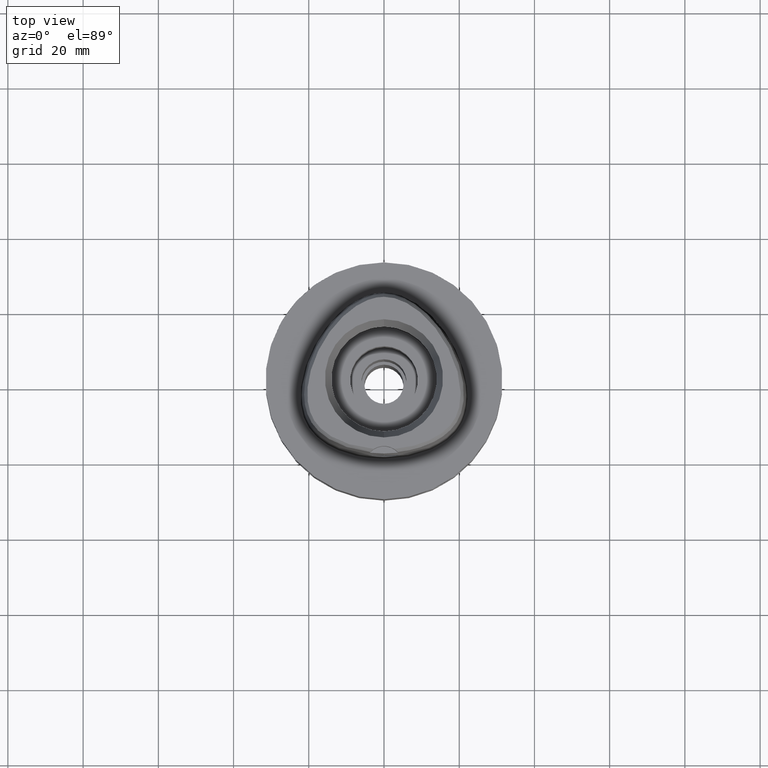
[diagram: clean part render]
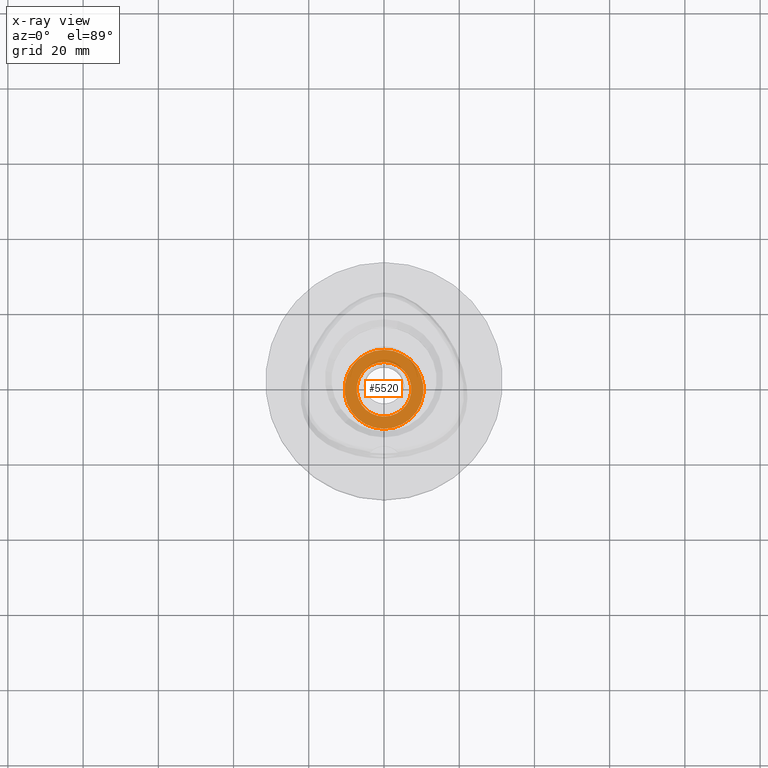
[diagram: x-ray — body ghosted, one internal face saturated and labeled with its STEP entity id]
A machine part, top view, then the same camera in x-ray: the body is ghosted and one INTERNAL B-rep face — a face not visible from any outside direction — is saturated and labeled: STEP entity #5520.
In plain terms, the highlighted planar face has unit normal (0, 0, -1).
Its self-contained STEP definition (entity closure, byte-faithful):
#272 = EDGE_CURVE ( 'NONE', #3691, #3678, #353, .T. ) ;
#353 = CIRCLE ( 'NONE', #622, 10.50000000000000000 ) ;
#579 = DIRECTION ( 'NONE',  ( 0.0000000000000000000, 0.0000000000000000000, 1.000000000000000000 ) ) ;
#622 = AXIS2_PLACEMENT_3D ( 'NONE', #1609, #1549, #3329 ) ;
#1212 = CARTESIAN_POINT ( 'NONE',  ( 0.0000000000000000000, 7.250000000000000000, -8.200000000000001066 ) ) ;
#1276 = VERTEX_POINT ( 'NONE', #3063 ) ;
#1397 = CIRCLE ( 'NONE', #3847, 7.250000000000000000 ) ;
#1549 = DIRECTION ( 'NONE',  ( 0.0000000000000000000, 0.0000000000000000000, -1.000000000000000000 ) ) ;
#1609 = CARTESIAN_POINT ( 'NONE',  ( 0.0000000000000000000, 0.0000000000000000000, -8.200000000000001066 ) ) ;
#1744 = FACE_BOUND ( 'NONE', #2426, .T. ) ;
#1852 = CARTESIAN_POINT ( 'NONE',  ( 0.0000000000000000000, 0.0000000000000000000, -8.200000000000001066 ) ) ;
#2171 = EDGE_CURVE ( 'NONE', #3409, #1276, #1397, .T. ) ;
#2206 = CARTESIAN_POINT ( 'NONE',  ( 0.0000000000000000000, 0.0000000000000000000, -8.200000000000001066 ) ) ;
#2214 = AXIS2_PLACEMENT_3D ( 'NONE', #1852, #3641, #4083 ) ;
#2216 = CARTESIAN_POINT ( 'NONE',  ( 0.0000000000000000000, 0.0000000000000000000, -8.200000000000001066 ) ) ;
#2332 = CARTESIAN_POINT ( 'NONE',  ( 0.0000000000000000000, -10.50000000000000000, -8.200000000000001066 ) ) ;
#2372 = EDGE_CURVE ( 'NONE', #3678, #3691, #3300, .T. ) ;
#2426 = EDGE_LOOP ( 'NONE', ( #3219, #3356 ) ) ;
#2657 = DIRECTION ( 'NONE',  ( 0.0000000000000000000, 1.000000000000000000, 0.0000000000000000000 ) ) ;
#2956 = CIRCLE ( 'NONE', #5265, 7.250000000000000000 ) ;
#3063 = CARTESIAN_POINT ( 'NONE',  ( 0.0000000000000000000, -7.250000000000000000, -8.200000000000001066 ) ) ;
#3076 = DIRECTION ( 'NONE',  ( 0.0000000000000000000, 0.0000000000000000000, -1.000000000000000000 ) ) ;
#3183 = CARTESIAN_POINT ( 'NONE',  ( 0.0000000000000000000, 10.50000000000000000, -8.200000000000001066 ) ) ;
#3219 = ORIENTED_EDGE ( 'NONE', *, *, #2171, .F. ) ;
#3238 = EDGE_LOOP ( 'NONE', ( #5283, #4599 ) ) ;
#3300 = CIRCLE ( 'NONE', #4993, 10.50000000000000000 ) ;
#3329 = DIRECTION ( 'NONE',  ( 0.0000000000000000000, -1.000000000000000000, 0.0000000000000000000 ) ) ;
#3356 = ORIENTED_EDGE ( 'NONE', *, *, #3733, .F. ) ;
#3409 = VERTEX_POINT ( 'NONE', #1212 ) ;
#3472 = PLANE ( 'NONE',  #2214 ) ;
#3641 = DIRECTION ( 'NONE',  ( 0.0000000000000000000, 0.0000000000000000000, -1.000000000000000000 ) ) ;
#3678 = VERTEX_POINT ( 'NONE', #3183 ) ;
#3691 = VERTEX_POINT ( 'NONE', #2332 ) ;
#3733 = EDGE_CURVE ( 'NONE', #1276, #3409, #2956, .T. ) ;
#3847 = AXIS2_PLACEMENT_3D ( 'NONE', #2206, #3927, #5214 ) ;
#3891 = FACE_OUTER_BOUND ( 'NONE', #3238, .T. ) ;
#3927 = DIRECTION ( 'NONE',  ( 0.0000000000000000000, 0.0000000000000000000, 1.000000000000000000 ) ) ;
#4083 = DIRECTION ( 'NONE',  ( 0.0000000000000000000, -1.000000000000000000, 0.0000000000000000000 ) ) ;
#4444 = DIRECTION ( 'NONE',  ( 0.0000000000000000000, -1.000000000000000000, 0.0000000000000000000 ) ) ;
#4599 = ORIENTED_EDGE ( 'NONE', *, *, #272, .F. ) ;
#4993 = AXIS2_PLACEMENT_3D ( 'NONE', #5232, #3076, #2657 ) ;
#5214 = DIRECTION ( 'NONE',  ( 0.0000000000000000000, 1.000000000000000000, 0.0000000000000000000 ) ) ;
#5232 = CARTESIAN_POINT ( 'NONE',  ( 0.0000000000000000000, 0.0000000000000000000, -8.200000000000001066 ) ) ;
#5265 = AXIS2_PLACEMENT_3D ( 'NONE', #2216, #579, #4444 ) ;
#5283 = ORIENTED_EDGE ( 'NONE', *, *, #2372, .F. ) ;
#5520 = ADVANCED_FACE ( 'NONE', ( #3891, #1744 ), #3472, .F. ) ;